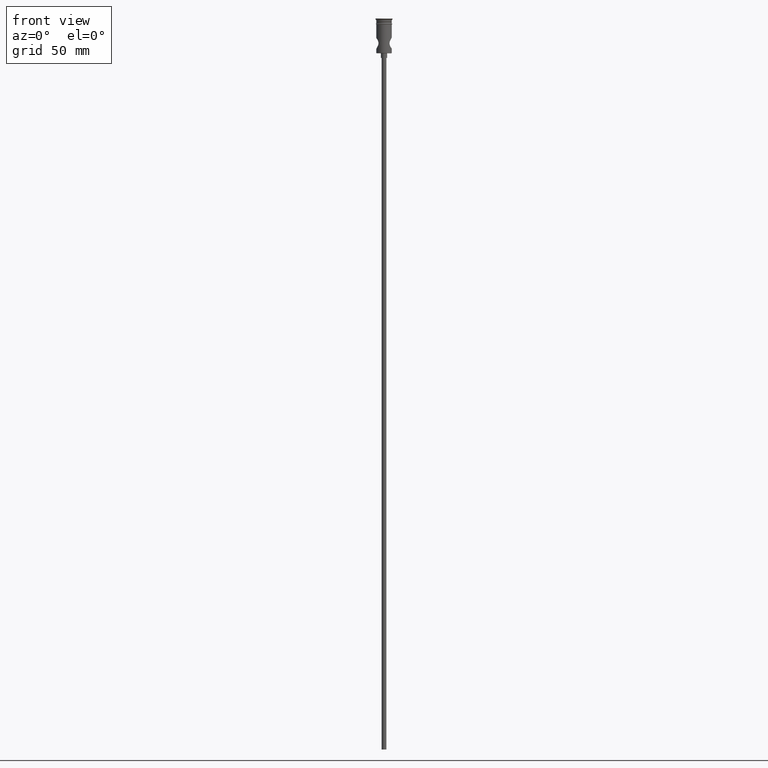
[diagram: clean part render]
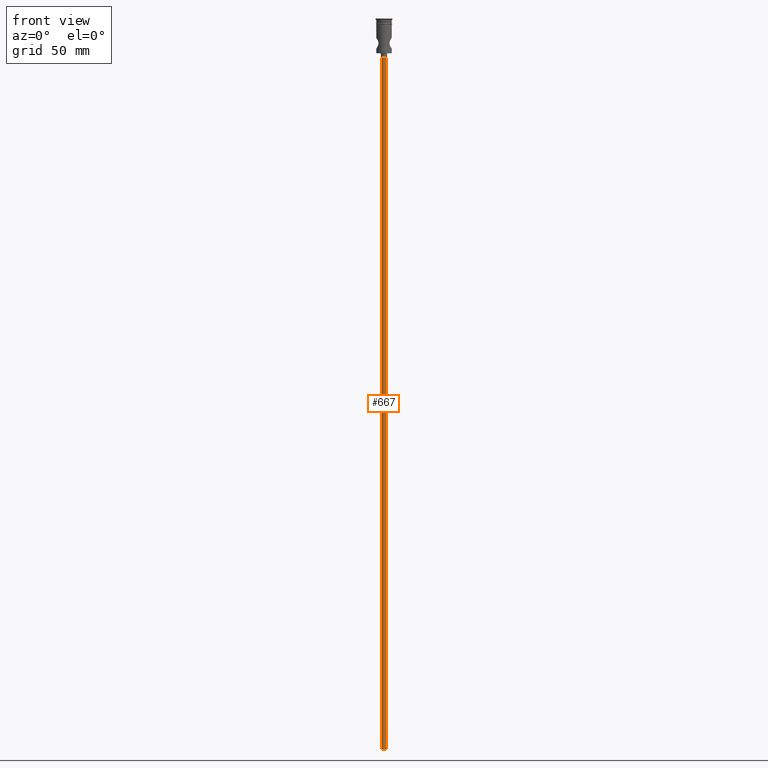
[diagram: same view with one face highlighted and labeled with its STEP entity id]
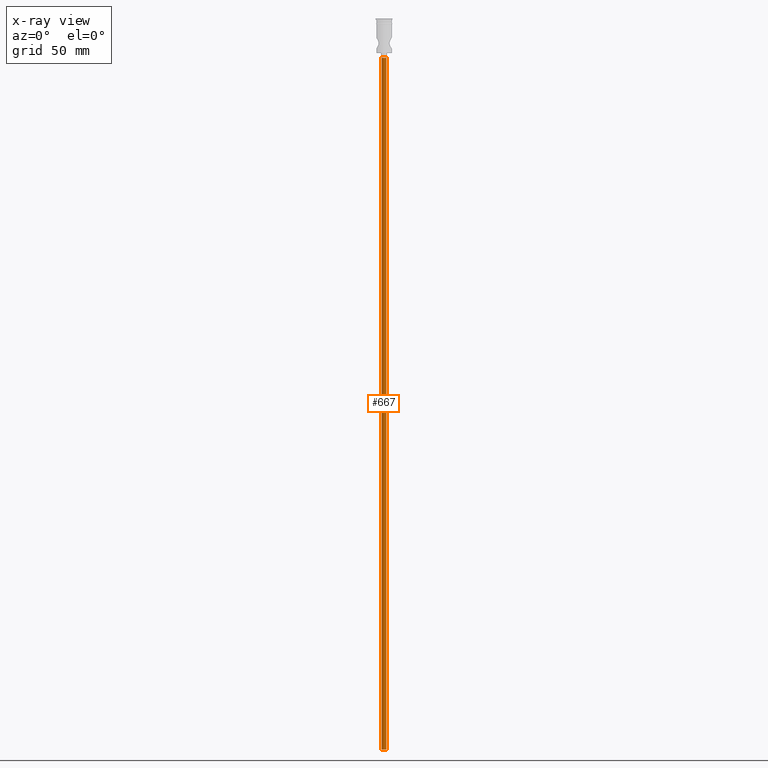
[diagram: x-ray of the same camera — body ghosted, the highlighted face saturated]
A machine part, front view. The second image highlights one B-rep face of the part: STEP entity #667.
The next image is the same camera in x-ray: the body ghosted, the highlighted face saturated — about 0% of this face is hidden behind the body in this view.
In plain terms, the highlighted cylindrical surface (edge-blend (fillet) strip) has radius 1.5 mm, axis along (-0, -0, 1).
Its self-contained STEP definition (entity closure, byte-faithful):
#28 = CARTESIAN_POINT ( 'NONE',  ( -1.500000000000000222, 1.836970198721030181E-16, -472.5000000000000568 ) ) ;
#140 = VECTOR ( 'NONE', #318, 1000.000000000000000 ) ;
#183 = CIRCLE ( 'NONE', #976, 1.500000000000000222 ) ;
#235 = VERTEX_POINT ( 'NONE', #1150 ) ;
#253 = CYLINDRICAL_SURFACE ( 'NONE', #1258, 1.500000000000000222 ) ;
#258 = DIRECTION ( 'NONE',  ( 0.000000000000000000, 0.000000000000000000, -1.000000000000000000 ) ) ;
#261 = DIRECTION ( 'NONE',  ( 1.000000000000000000, 0.000000000000000000, 0.000000000000000000 ) ) ;
#275 = ORIENTED_EDGE ( 'NONE', *, *, #417, .T. ) ;
#318 = DIRECTION ( 'NONE',  ( -0.000000000000000000, -0.000000000000000000, 1.000000000000000000 ) ) ;
#337 = DIRECTION ( 'NONE',  ( -0.000000000000000000, -0.000000000000000000, 1.000000000000000000 ) ) ;
#359 = VECTOR ( 'NONE', #708, 1000.000000000000000 ) ;
#417 = EDGE_CURVE ( 'NONE', #648, #235, #1380, .T. ) ;
#433 = VERTEX_POINT ( 'NONE', #28 ) ;
#498 = CARTESIAN_POINT ( 'NONE',  ( 0.000000000000000000, 0.000000000000000000, -472.5000000000000568 ) ) ;
#597 = CARTESIAN_POINT ( 'NONE',  ( 1.500000000000000222, 0.000000000000000000, -472.5000000000000568 ) ) ;
#624 = ORIENTED_EDGE ( 'NONE', *, *, #1000, .T. ) ;
#648 = VERTEX_POINT ( 'NONE', #1312 ) ;
#665 = DIRECTION ( 'NONE',  ( 0.000000000000000000, 0.000000000000000000, -1.000000000000000000 ) ) ;
#667 = ADVANCED_FACE ( 'NONE', ( #773 ), #253, .T. ) ;
#700 = CARTESIAN_POINT ( 'NONE',  ( 0.000000000000000000, 0.000000000000000000, -472.5000000000000568 ) ) ;
#708 = DIRECTION ( 'NONE',  ( -0.000000000000000000, -0.000000000000000000, 1.000000000000000000 ) ) ;
#735 = CARTESIAN_POINT ( 'NONE',  ( -1.500000000000000222, 1.836970198721030181E-16, -472.5000000000000568 ) ) ;
#773 = FACE_OUTER_BOUND ( 'NONE', #1054, .T. ) ;
#802 = CIRCLE ( 'NONE', #1357, 1.500000000000000222 ) ;
#866 = CARTESIAN_POINT ( 'NONE',  ( -1.500000000000000222, 1.836970198721030181E-16, -25.50000000000000000 ) ) ;
#934 = DIRECTION ( 'NONE',  ( -1.000000000000000000, 0.000000000000000000, 0.000000000000000000 ) ) ;
#976 = AXIS2_PLACEMENT_3D ( 'NONE', #498, #258, #934 ) ;
#980 = ORIENTED_EDGE ( 'NONE', *, *, #1207, .F. ) ;
#1000 = EDGE_CURVE ( 'NONE', #235, #1343, #802, .T. ) ;
#1054 = EDGE_LOOP ( 'NONE', ( #980, #1184, #275, #624 ) ) ;
#1124 = EDGE_CURVE ( 'NONE', #648, #433, #183, .T. ) ;
#1150 = CARTESIAN_POINT ( 'NONE',  ( 1.500000000000000222, 0.000000000000000000, -25.50000000000000000 ) ) ;
#1184 = ORIENTED_EDGE ( 'NONE', *, *, #1124, .F. ) ;
#1207 = EDGE_CURVE ( 'NONE', #433, #1343, #1280, .T. ) ;
#1229 = CARTESIAN_POINT ( 'NONE',  ( 0.000000000000000000, 0.000000000000000000, -25.50000000000000000 ) ) ;
#1235 = DIRECTION ( 'NONE',  ( -1.000000000000000000, 0.000000000000000000, 0.000000000000000000 ) ) ;
#1258 = AXIS2_PLACEMENT_3D ( 'NONE', #700, #337, #261 ) ;
#1280 = LINE ( 'NONE', #735, #140 ) ;
#1312 = CARTESIAN_POINT ( 'NONE',  ( 1.500000000000000222, 0.000000000000000000, -472.5000000000000568 ) ) ;
#1343 = VERTEX_POINT ( 'NONE', #866 ) ;
#1357 = AXIS2_PLACEMENT_3D ( 'NONE', #1229, #665, #1235 ) ;
#1380 = LINE ( 'NONE', #597, #359 ) ;